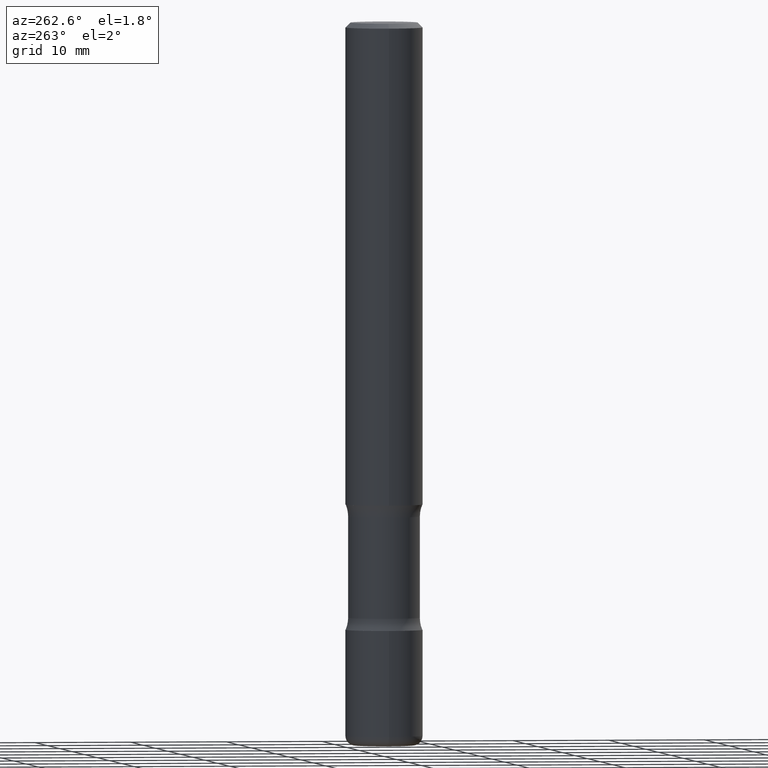
[diagram: clean part render]
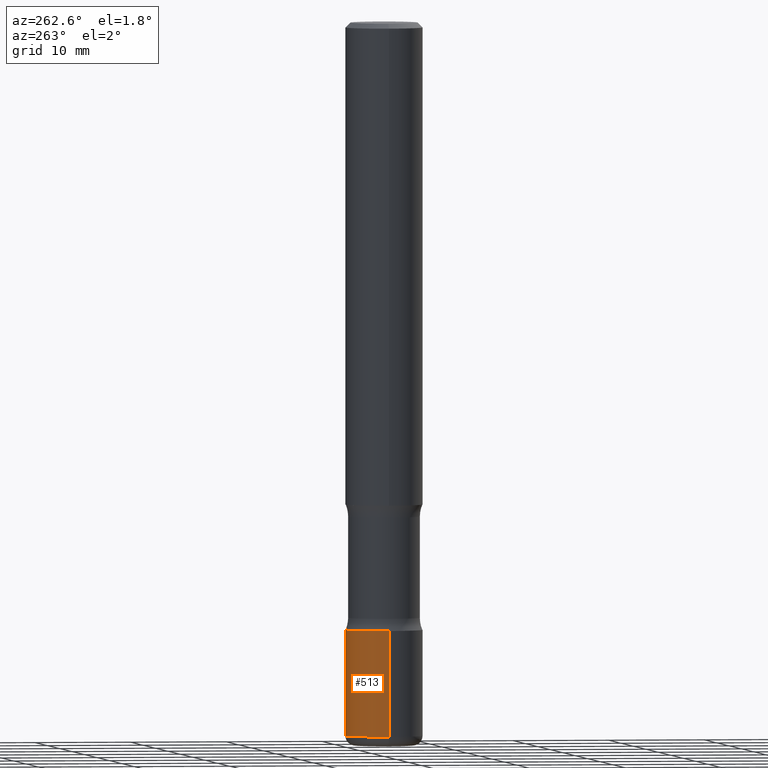
[diagram: same view with one face highlighted and labeled with its STEP entity id]
A machine part, auxiliary view. The second image highlights one B-rep face of the part: STEP entity #513.
In plain terms, the highlighted cylindrical surface (partial cylindrical patch) has radius 4.0005 mm, axis along (-0, 0, 1).
Its self-contained STEP definition (entity closure, byte-faithful):
#6 = CARTESIAN_POINT ( 'NONE',  ( 6.065740826861612418E-29, -8.660270312866537270E-15, -2.480399999999999494 ) ) ;
#7 = DIRECTION ( 'NONE',  ( 1.000000000000000000, -6.982962677686265922E-15, 4.876176775795935232E-29 ) ) ;
#10 = CARTESIAN_POINT ( 'NONE',  ( 0.1575000000000001399, -9.760086934602125539E-15, -2.480399999999999494 ) ) ;
#11 = VERTEX_POINT ( 'NONE', #387 ) ;
#22 = AXIS2_PLACEMENT_3D ( 'NONE', #6, #94, #439 ) ;
#34 = CARTESIAN_POINT ( 'NONE',  ( -0.1575000000000001399, -8.297071213903919899E-15, -2.480399999999999494 ) ) ;
#51 = DIRECTION ( 'NONE',  ( -2.445468806185136597E-29, 3.491481338843145583E-15, 1.000000000000000000 ) ) ;
#52 = ORIENTED_EDGE ( 'NONE', *, *, #110, .T. ) ;
#75 = DIRECTION ( 'NONE',  ( 1.000000000000000000, -6.982962677686268288E-15, 0.000000000000000000 ) ) ;
#94 = DIRECTION ( 'NONE',  ( -2.445468806185136597E-29, 3.491481338843145583E-15, 1.000000000000000000 ) ) ;
#104 = LINE ( 'NONE', #281, #391 ) ;
#110 = EDGE_CURVE ( 'NONE', #255, #11, #432, .T. ) ;
#116 = VERTEX_POINT ( 'NONE', #34 ) ;
#142 = ORIENTED_EDGE ( 'NONE', *, *, #489, .F. ) ;
#145 = AXIS2_PLACEMENT_3D ( 'NONE', #222, #51, #7 ) ;
#153 = AXIS2_PLACEMENT_3D ( 'NONE', #507, #465, #75 ) ;
#174 = ORIENTED_EDGE ( 'NONE', *, *, #220, .T. ) ;
#187 = EDGE_CURVE ( 'NONE', #255, #408, #421, .T. ) ;
#203 = DIRECTION ( 'NONE',  ( -2.445468806185136877E-29, 3.491481338843145188E-15, 1.000000000000000000 ) ) ;
#220 = EDGE_CURVE ( 'NONE', #11, #116, #104, .T. ) ;
#222 = CARTESIAN_POINT ( 'NONE',  ( 0.000000000000000000, 0.000000000000000000, 0.000000000000000000 ) ) ;
#255 = VERTEX_POINT ( 'NONE', #475 ) ;
#262 = FACE_OUTER_BOUND ( 'NONE', #494, .T. ) ;
#281 = CARTESIAN_POINT ( 'NONE',  ( -0.1575000000000001399, 1.119104808822158787E-15, -7.747322767151482590E-30 ) ) ;
#312 = CIRCLE ( 'NONE', #22, 0.1575000000000001399 ) ;
#367 = CARTESIAN_POINT ( 'NONE',  ( 0.1575000000000001399, -1.099816621735587875E-15, 7.679978421878605039E-30 ) ) ;
#387 = CARTESIAN_POINT ( 'NONE',  ( -0.1575000000000003064, -9.052976923763458555E-15, -2.913399999999999768 ) ) ;
#391 = VECTOR ( 'NONE', #449, 39.37007874015748143 ) ;
#395 = CYLINDRICAL_SURFACE ( 'NONE', #145, 0.1575000000000001399 ) ;
#408 = VERTEX_POINT ( 'NONE', #10 ) ;
#421 = LINE ( 'NONE', #367, #451 ) ;
#427 = ORIENTED_EDGE ( 'NONE', *, *, #187, .F. ) ;
#432 = CIRCLE ( 'NONE', #153, 0.1575000000000001399 ) ;
#439 = DIRECTION ( 'NONE',  ( 1.000000000000000000, -6.982962677686268288E-15, 0.000000000000000000 ) ) ;
#449 = DIRECTION ( 'NONE',  ( -2.445468806185136877E-29, 3.491481338843145188E-15, 1.000000000000000000 ) ) ;
#451 = VECTOR ( 'NONE', #203, 39.37007874015748143 ) ;
#465 = DIRECTION ( 'NONE',  ( -2.445468806185136597E-29, 3.491481338843145583E-15, 1.000000000000000000 ) ) ;
#475 = CARTESIAN_POINT ( 'NONE',  ( 0.1575000000000003064, -1.127189835432120758E-14, -2.913399999999999768 ) ) ;
#489 = EDGE_CURVE ( 'NONE', #408, #116, #312, .T. ) ;
#494 = EDGE_LOOP ( 'NONE', ( #52, #174, #142, #427 ) ) ;
#507 = CARTESIAN_POINT ( 'NONE',  ( 7.124628819939776708E-29, -1.017208173258561931E-14, -2.913399999999999768 ) ) ;
#513 = ADVANCED_FACE ( 'NONE', ( #262 ), #395, .T. ) ;